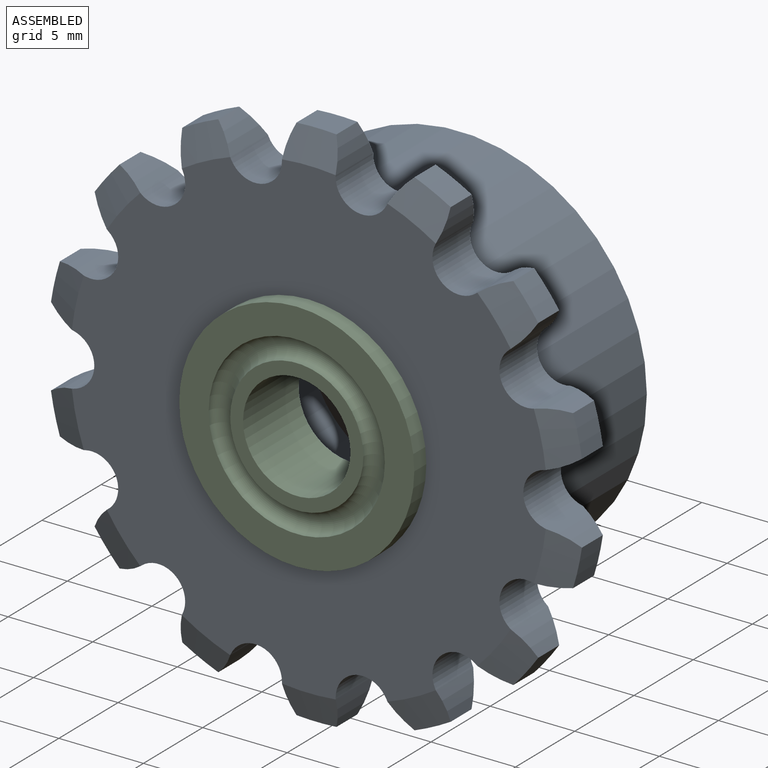
[diagram: assembled view]
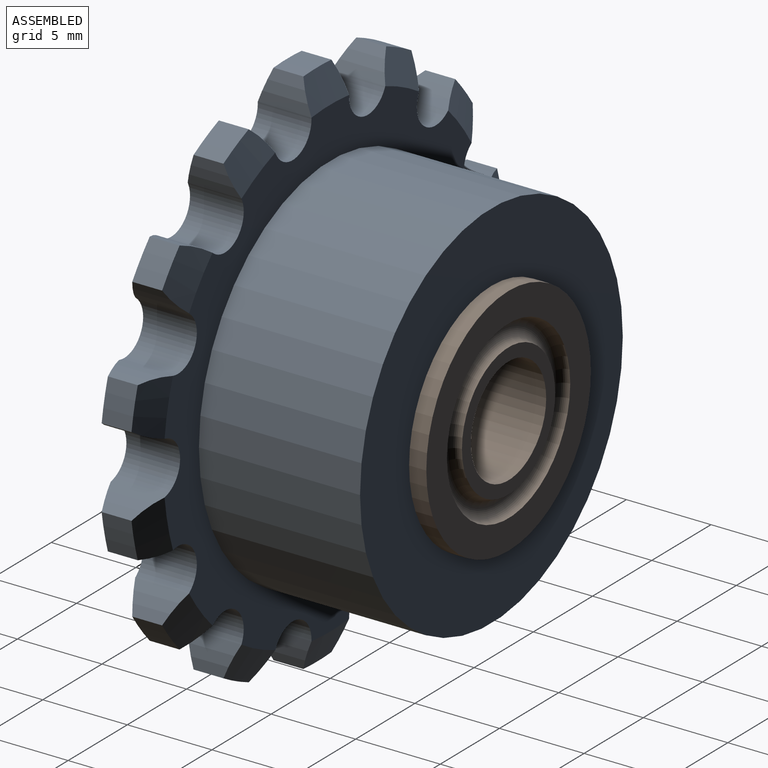
[diagram: assembled view, second angle]
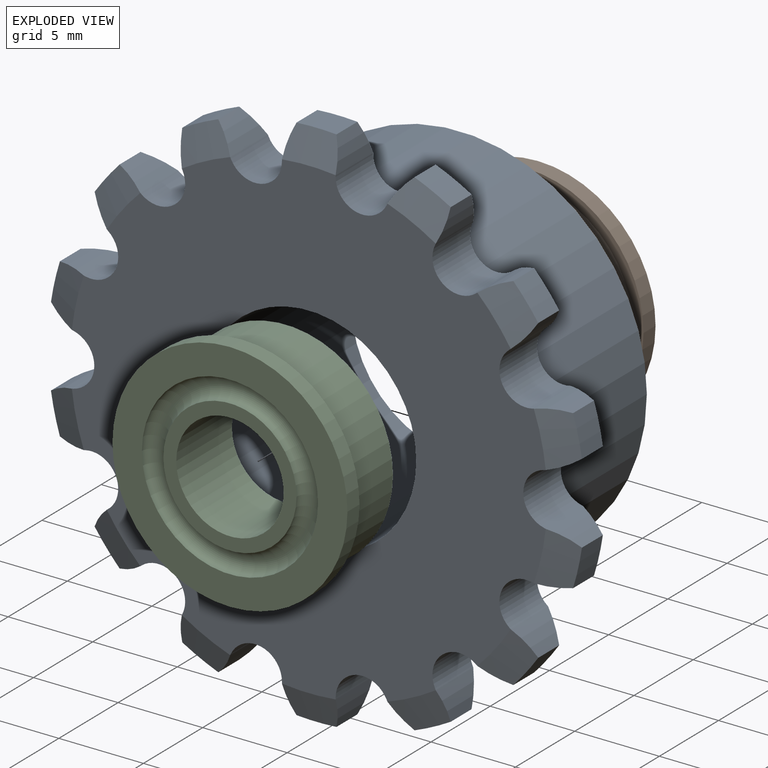
[diagram: exploded view]
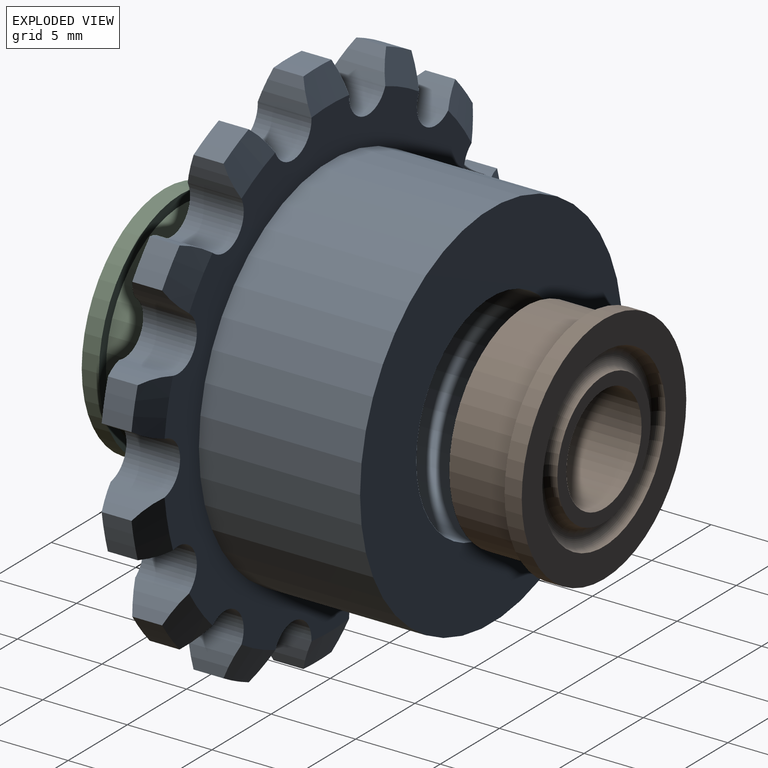
[diagram: exploded view, second angle]
ASSEMBLY  parts=3 mates=2
PART A: 89 faces, bbox 31.6x12.7x31.8 mm
  f0: cylinder r=4.76mm len=3.18mm, axis (0,1,0), area 4.9mm2, adj f1,f55,f57,f58,f68,f79
  f1: cylinder r=1.59mm len=3.18mm, axis (0,1,0), area 13.6mm2, adj f0,f2,f57,f58
  f2: cylinder r=4.76mm len=3.18mm, axis (0,1,0), area 4.9mm2, adj f1,f3,f57,f58,f69,f80
  f3: cylinder r=15.88mm len=2.13mm, axis (0,1,0), area 4.2mm2, adj f2,f4,f69,f80
  f4: cylinder r=4.76mm len=3.18mm, axis (0,1,0), area 4.9mm2, adj f3,f5,f57,f58,f69,f80
  f5: cylinder r=1.59mm len=3.18mm, axis (0,1,0), area 13.6mm2, adj f4,f6,f57,f58
  f6: cylinder r=4.76mm len=3.18mm, axis (0,1,0), area 4.9mm2, adj f5,f7,f57,f58,f70,f81
  f7: cylinder r=15.88mm len=2.37mm, axis (0,1,0), area 4.2mm2, adj f6,f8,f70,f81
  f8: cylinder r=4.76mm len=3.18mm, axis (0,1,0), area 4.9mm2, adj f7,f9,f57,f58,f70,f81
  f9: cylinder r=1.59mm len=3.18mm, axis (0,1,0), area 13.6mm2, adj f8,f10,f57,f58
  f10: cylinder r=4.76mm len=3.18mm, axis (0,1,0), area 4.9mm2, adj f9,f11,f57,f58,f71,f82
  f11: cylinder r=15.88mm len=2.13mm, axis (0,1,0), area 4.2mm2, adj f10,f12,f71,f82
  f12: cylinder r=4.76mm len=3.18mm, axis (0,1,0), area 4.9mm2, adj f11,f13,f57,f58,f71,f82
  f13: cylinder r=1.59mm len=3.18mm, axis (0,1,0), area 13.6mm2, adj f12,f14,f57,f58
  f14: cylinder r=4.76mm len=3.18mm, axis (0,1,0), area 4.9mm2, adj f13,f15,f57,f58,f72,f83
  f15: cylinder r=15.88mm len=1.85mm, axis (0,1,0), area 4.2mm2, adj f14,f16,f72,f83
  f16: cylinder r=4.76mm len=3.18mm, axis (0,1,0), area 4.9mm2, adj f15,f17,f57,f58,f72,f83
  f17: cylinder r=1.59mm len=3.18mm, axis (0,1,0), area 13.6mm2, adj f16,f18,f57,f58
  f18: cylinder r=4.76mm len=3.18mm, axis (0,1,0), area 4.9mm2, adj f17,f19,f57,f58,f73,f84
  f19: cylinder r=15.88mm len=2.31mm, axis (0,1,0), area 4.2mm2, adj f18,f20,f73,f84
  f20: cylinder r=4.76mm len=3.18mm, axis (0,1,0), area 4.9mm2, adj f19,f21,f57,f58,f73,f84
  f21: cylinder r=1.59mm len=3.18mm, axis (0,1,0), area 13.6mm2, adj f20,f22,f57,f58
  f22: cylinder r=4.76mm len=3.18mm, axis (0,1,0), area 4.9mm2, adj f21,f23,f57,f58,f74,f85
  f23: cylinder r=15.88mm len=2.31mm, axis (0,1,0), area 4.2mm2, adj f22,f24,f74,f85
  f24: cylinder r=4.76mm len=3.18mm, axis (0,1,0), area 4.9mm2, adj f23,f25,f57,f58,f74,f85
  f25: cylinder r=1.59mm len=3.18mm, axis (0,1,0), area 13.6mm2, adj f24,f26,f57,f58
  f26: cylinder r=4.76mm len=3.18mm, axis (0,1,0), area 4.9mm2, adj f25,f27,f57,f58,f61,f86
  f27: cylinder r=15.88mm len=1.85mm, axis (0,1,0), area 4.2mm2, adj f26,f28,f61,f86
  f28: cylinder r=4.76mm len=3.18mm, axis (0,1,0), area 4.9mm2, adj f27,f29,f57,f58,f61,f86
  f29: cylinder r=1.59mm len=3.18mm, axis (0,1,0), area 13.6mm2, adj f28,f30,f57,f58
  f30: cylinder r=4.76mm len=3.18mm, axis (0,1,0), area 4.9mm2, adj f29,f31,f57,f58,f62,f87
  f31: cylinder r=15.88mm len=2.13mm, axis (0,1,0), area 4.2mm2, adj f30,f32,f62,f87
  f32: cylinder r=4.76mm len=3.18mm, axis (0,1,0), area 4.9mm2, adj f31,f33,f57,f58,f62,f87
  f33: cylinder r=1.59mm len=3.18mm, axis (0,1,0), area 13.6mm2, adj f32,f34,f57,f58
  f34: cylinder r=4.76mm len=3.18mm, axis (0,1,0), area 4.9mm2, adj f33,f35,f57,f58,f63,f88
  f35: cylinder r=15.88mm len=2.37mm, axis (0,1,0), area 4.2mm2, adj f34,f36,f63,f88
  f36: cylinder r=4.76mm len=3.18mm, axis (0,1,0), area 4.9mm2, adj f35,f37,f57,f58,f63,f88
  f37: cylinder r=1.59mm len=3.18mm, axis (0,1,0), area 13.6mm2, adj f36,f38,f57,f58
  f38: cylinder r=4.76mm len=3.18mm, axis (0,1,0), area 4.9mm2, adj f37,f39,f57,f58,f64,f75
  f39: cylinder r=15.88mm len=2.13mm, axis (0,1,0), area 4.2mm2, adj f38,f40,f64,f75
  f40: cylinder r=4.76mm len=3.18mm, axis (0,1,0), area 4.9mm2, adj f39,f41,f57,f58,f64,f75
  f41: cylinder r=1.59mm len=3.18mm, axis (0,1,0), area 13.6mm2, adj f40,f42,f57,f58
  f42: cylinder r=4.76mm len=3.18mm, axis (0,1,0), area 4.9mm2, adj f41,f43,f57,f58,f65,f76
  f43: cylinder r=15.88mm len=1.85mm, axis (0,1,0), area 4.2mm2, adj f42,f44,f65,f76
  f44: cylinder r=4.76mm len=3.18mm, axis (0,1,0), area 4.9mm2, adj f43,f45,f57,f58,f65,f76
  f45: cylinder r=1.59mm len=3.18mm, axis (0,1,0), area 13.6mm2, adj f44,f46,f57,f58
  f46: cylinder r=4.76mm len=3.18mm, axis (0,1,0), area 4.9mm2, adj f45,f47,f57,f58,f66,f77
  f47: cylinder r=15.88mm len=2.31mm, axis (0,1,0), area 4.2mm2, adj f46,f48,f66,f77
  f48: cylinder r=4.76mm len=3.18mm, axis (0,1,0), area 4.9mm2, adj f47,f49,f57,f58,f66,f77
  f49: cylinder r=1.59mm len=3.18mm, axis (0,1,0), area 13.6mm2, adj f48,f50,f57,f58
  f50: cylinder r=4.76mm len=3.18mm, axis (0,1,0), area 4.9mm2, adj f49,f51,f57,f58,f67,f78
  f51: cylinder r=15.88mm len=2.31mm, axis (0,1,0), area 4.2mm2, adj f50,f52,f67,f78
  f52: cylinder r=4.76mm len=3.18mm, axis (0,1,0), area 4.9mm2, adj f51,f53,f57,f58,f67,f78
  f53: cylinder r=1.59mm len=3.18mm, axis (0,1,0), area 13.9mm2, adj f52,f54,f57,f58,f68
  f54: cylinder r=4.77mm len=3.17mm, axis (0,1,0), area 4.6mm2, adj f53,f55,f57,f68,f79
  f55: cylinder r=15.88mm len=1.85mm, axis (0,1,0), area 4.2mm2, adj f0,f54,f68,f79
  f56: cylinder r=6.35mm len=12.7mm, axis (0,1,0), area 506.7mm2, adj f57,f60
  f57: plane 28.19x28.02mm, normal (0,-1,0), area 451.1mm2, adj f0,f1,f2,f4,f5,f6,f8,f9
  f58: plane 28.16x27.99mm, normal (0,1,0), area 190.4mm2, adj f0,f1,f2,f4,f5,f6,f8,f9
  f59: cylinder r=11.09mm len=22.19mm, axis (0,-1,0), area 663.9mm2, adj f58,f60
  f60: plane 22.19x22.19mm, normal (0,1,0), area 259.9mm2, adj f56,f59
  f61: cone r=15.88mm half-angle=67deg, axis (0,-1,0), area 5.7mm2, adj f26,f27,f28,f58
  f62: cone r=15.88mm half-angle=67deg, axis (0,-1,0), area 5.7mm2, adj f30,f31,f32,f58
  f63: cone r=15.88mm half-angle=67deg, axis (0,-1,0), area 5.7mm2, adj f34,f35,f36,f58
  f64: cone r=15.88mm half-angle=67deg, axis (0,-1,0), area 5.7mm2, adj f38,f39,f40,f58
  f65: cone r=15.88mm half-angle=67deg, axis (0,-1,0), area 5.7mm2, adj f42,f43,f44,f58
  f66: cone r=15.88mm half-angle=67deg, axis (0,-1,0), area 5.7mm2, adj f46,f47,f48,f58
  f67: cone r=15.88mm half-angle=67deg, axis (0,-1,0), area 5.7mm2, adj f50,f51,f52,f58
  f68: cone r=15.88mm half-angle=67deg, axis (0,-1,0), area 5.7mm2, adj f0,f53,f54,f55,f58
  f69: cone r=15.88mm half-angle=67deg, axis (0,-1,0), area 5.7mm2, adj f2,f3,f4,f58
  f70: cone r=15.88mm half-angle=67deg, axis (0,-1,0), area 5.7mm2, adj f6,f7,f8,f58
  f71: cone r=15.88mm half-angle=67deg, axis (0,-1,0), area 5.7mm2, adj f10,f11,f12,f58
  f72: cone r=15.88mm half-angle=67deg, axis (0,-1,0), area 5.7mm2, adj f14,f15,f16,f58
  f73: cone r=15.88mm half-angle=67deg, axis (0,-1,0), area 5.7mm2, adj f18,f19,f20,f58
  f74: cone r=15.88mm half-angle=67deg, axis (0,-1,0), area 5.7mm2, adj f22,f23,f24,f58
  f75: cone r=14.1mm half-angle=70deg, axis (0,1,0), area 5.5mm2, adj f38,f39,f40,f57
  f76: cone r=14.1mm half-angle=70deg, axis (0,1,0), area 5.5mm2, adj f42,f43,f44,f57
  f77: cone r=14.1mm half-angle=70deg, axis (0,1,0), area 5.5mm2, adj f46,f47,f48,f57
  f78: cone r=14.1mm half-angle=70deg, axis (0,1,0), area 5.5mm2, adj f50,f51,f52,f57
  f79: cone r=14.1mm half-angle=70deg, axis (0,1,0), area 5.5mm2, adj f0,f54,f55,f57
  f80: cone r=14.1mm half-angle=70deg, axis (0,1,0), area 5.5mm2, adj f2,f3,f4,f57
  f81: cone r=14.1mm half-angle=70deg, axis (0,1,0), area 5.5mm2, adj f6,f7,f8,f57
  f82: cone r=14.1mm half-angle=70deg, axis (0,1,0), area 5.5mm2, adj f10,f11,f12,f57
  f83: cone r=14.1mm half-angle=70deg, axis (0,1,0), area 5.5mm2, adj f14,f15,f16,f57
  f84: cone r=14.1mm half-angle=70deg, axis (0,1,0), area 5.5mm2, adj f18,f19,f20,f57
  f85: cone r=14.1mm half-angle=70deg, axis (0,1,0), area 5.5mm2, adj f22,f23,f24,f57
  f86: cone r=14.1mm half-angle=70deg, axis (0,1,0), area 5.5mm2, adj f26,f27,f28,f57
  f87: cone r=14.1mm half-angle=70deg, axis (0,1,0), area 5.5mm2, adj f30,f31,f32,f57
  f88: cone r=14.1mm half-angle=70deg, axis (0,1,0), area 5.5mm2, adj f34,f35,f36,f57
PART B: 10 faces, bbox 13.9x13.9x5.6 mm
  f0: torus R=4.57mm, axis (0,0,1), area 57.3mm2, adj f5,f6
  f1: torus R=4.57mm, axis (0,0,1), area 57.3mm2, adj f7,f8
  f2: cylinder r=6.35mm len=12.7mm, axis (0,0,-1), area 146.9mm2, adj f7,f9
  f3: cylinder r=3.17mm len=6.35mm, axis (0,0,-1), area 93.7mm2, adj f6,f8
  f4: cylinder r=6.95mm len=13.89mm, axis (0,0,-1), area 44.3mm2, adj f5,f9
  f5: plane 13.89x13.89mm, normal (0,0,-1), area 66.4mm2, adj f0,f4
  f6: plane 7.87x7.87mm, normal (0,0,-1), area 17mm2, adj f0,f3
  f7: plane 12.7x12.7mm, normal (0,0,1), area 41.5mm2, adj f1,f2
  f8: plane 7.87x7.87mm, normal (0,0,1), area 17mm2, adj f1,f3
  f9: plane 13.89x13.89mm, normal (0,0,1), area 24.9mm2, adj f2,f4
PART C: same geometry as B
PLACE A at identity
PLACE B rot(axis=(1,0,0),90deg) t=(0,10.54,0)mm
PLACE C rot(axis=(-1,0,0),90deg) t=(0,-4.19,0)mm
MATE fastened B.f0 <-> A.f3  axis (0,-1,0) through (0,9.52,0)mm
MATE fastened C.f0 <-> A.f3  axis (0,1,0) through (0,-3.18,0)mm
